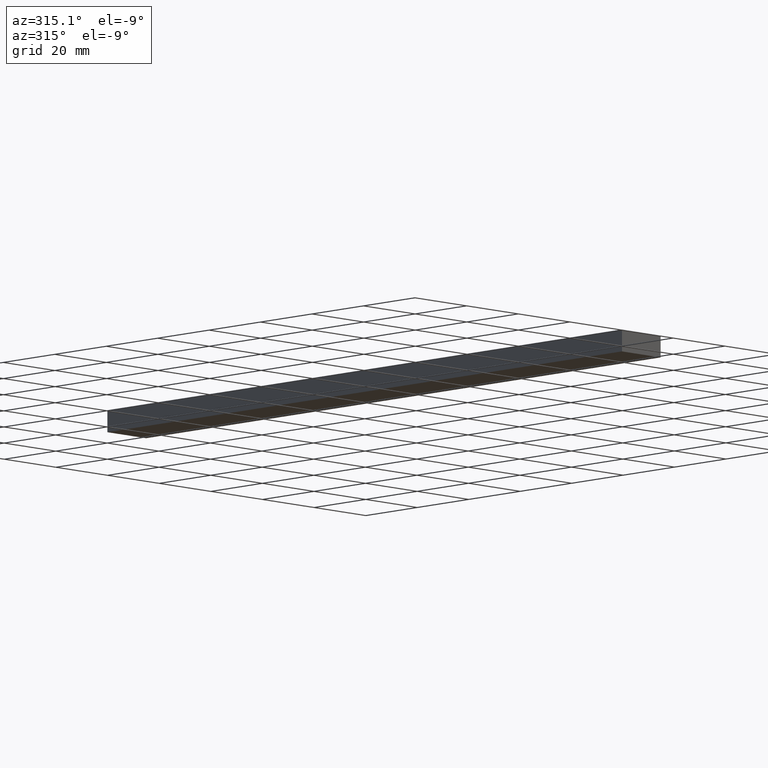
[diagram: clean part render]
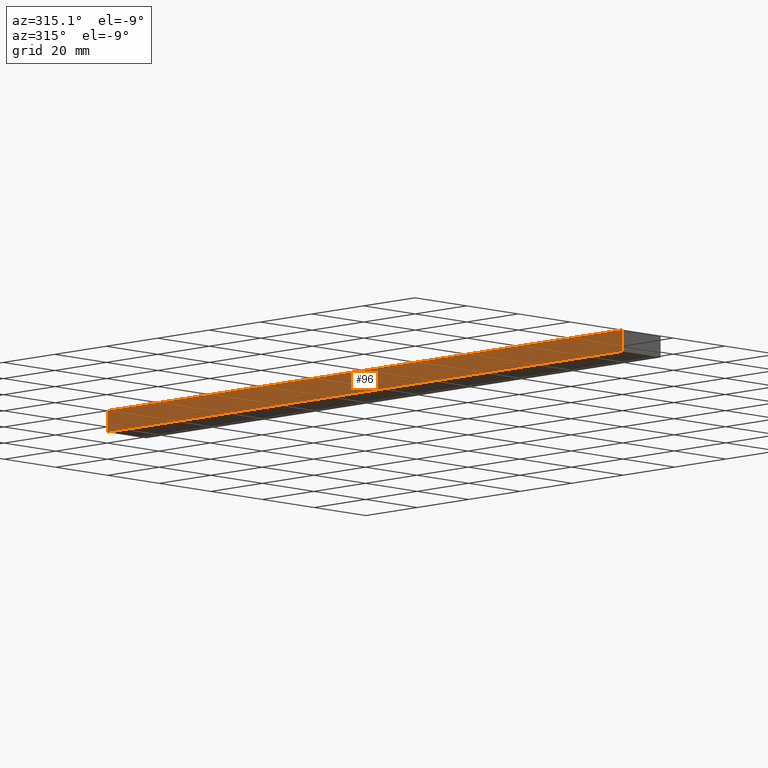
[diagram: same view with one face highlighted and labeled with its STEP entity id]
A machine part, auxiliary view. The second image highlights one B-rep face of the part: STEP entity #96.
In plain terms, the highlighted face is a freeform B-spline surface patch.
Its self-contained STEP definition (entity closure, byte-faithful):
#10=CARTESIAN_POINT('',(0.0,0.0,6.0));
#11=VERTEX_POINT('',#10);
#19=CARTESIAN_POINT('',(0.0,0.0,0.0));
#20=VERTEX_POINT('',#19);
#21=CARTESIAN_POINT('',(0.0,0.0,0.0));
#22=CARTESIAN_POINT('',(0.0,0.0,6.0));
#23=QUASI_UNIFORM_CURVE('',1,(#21,#22),.UNSPECIFIED.,.F.,.U.);
#24=EDGE_CURVE('',#20,#11,#23,.T.);
#46=CARTESIAN_POINT('',(0.0,200.0,6.0));
#47=VERTEX_POINT('',#46);
#62=CARTESIAN_POINT('',(0.0,200.0,0.0));
#63=VERTEX_POINT('',#62);
#69=CARTESIAN_POINT('',(0.0,200.0,0.0));
#70=CARTESIAN_POINT('',(0.0,200.0,6.0));
#71=QUASI_UNIFORM_CURVE('',1,(#69,#70),.UNSPECIFIED.,.F.,.U.);
#72=EDGE_CURVE('',#63,#47,#71,.T.);
#77=CARTESIAN_POINT('',(0.0,-9.989999612361194,6.299699988370837));
#78=CARTESIAN_POINT('',(0.0,-9.989999612361194,-0.299700149303376));
#79=CARTESIAN_POINT('',(0.0,209.990004976779200,6.299699988370837));
#80=CARTESIAN_POINT('',(0.0,209.990004976779200,-0.299700149303376));
#81=B_SPLINE_SURFACE_WITH_KNOTS('',1,1,((#77,#79),(#78,#80)),.UNSPECIFIED.,.F.,.F.,.U.,(2,2),(2,2),(0.0,6.599400137674214),(0.0,219.980004589140410),.UNSPECIFIED.);
#82=ORIENTED_EDGE('',*,*,#24,.T.);
#83=CARTESIAN_POINT('',(0.0,200.0,6.0));
#84=CARTESIAN_POINT('',(0.0,0.0,6.0));
#85=QUASI_UNIFORM_CURVE('',1,(#83,#84),.UNSPECIFIED.,.F.,.U.);
#86=EDGE_CURVE('',#47,#11,#85,.T.);
#87=ORIENTED_EDGE('',*,*,#86,.F.);
#88=ORIENTED_EDGE('',*,*,#72,.F.);
#89=CARTESIAN_POINT('',(0.0,200.0,0.0));
#90=CARTESIAN_POINT('',(0.0,0.0,0.0));
#91=QUASI_UNIFORM_CURVE('',1,(#89,#90),.UNSPECIFIED.,.F.,.U.);
#92=EDGE_CURVE('',#63,#20,#91,.T.);
#93=ORIENTED_EDGE('',*,*,#92,.T.);
#94=EDGE_LOOP('',(#82,#87,#88,#93));
#95=FACE_OUTER_BOUND('',#94,.T.);
#96=ADVANCED_FACE('',(#95),#81,.F.);